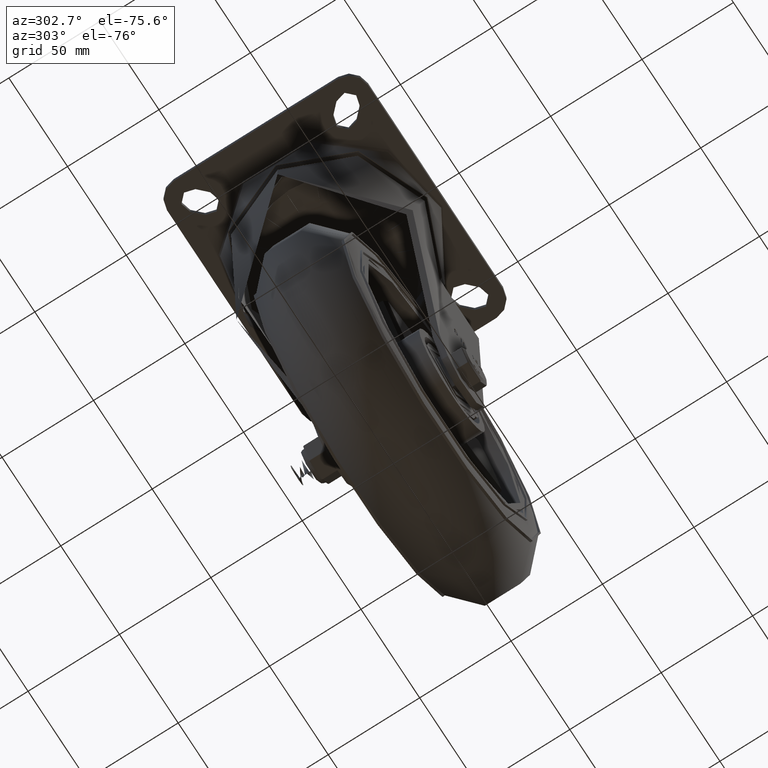
[diagram: clean part render]
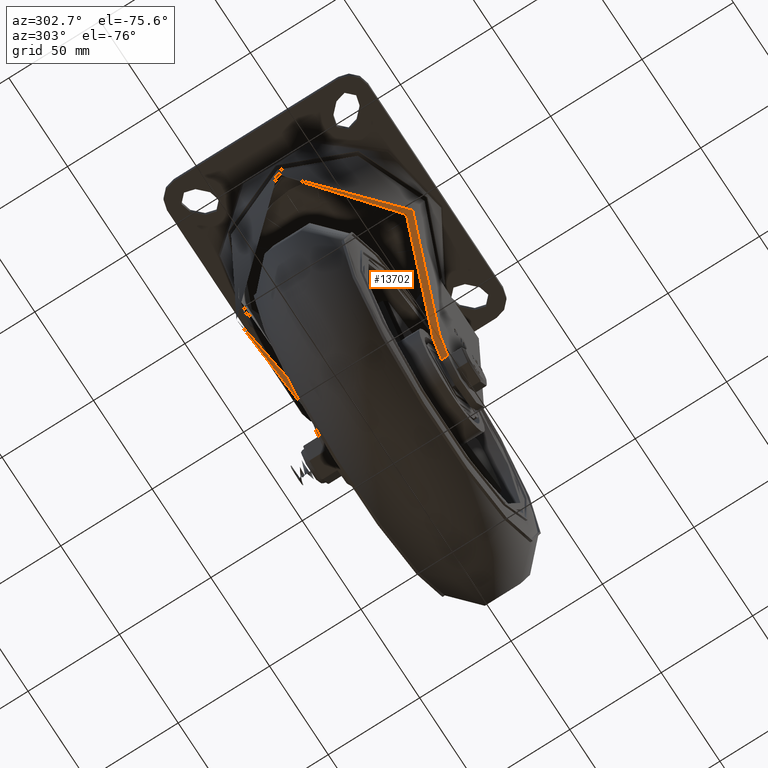
[diagram: same view with one face highlighted and labeled with its STEP entity id]
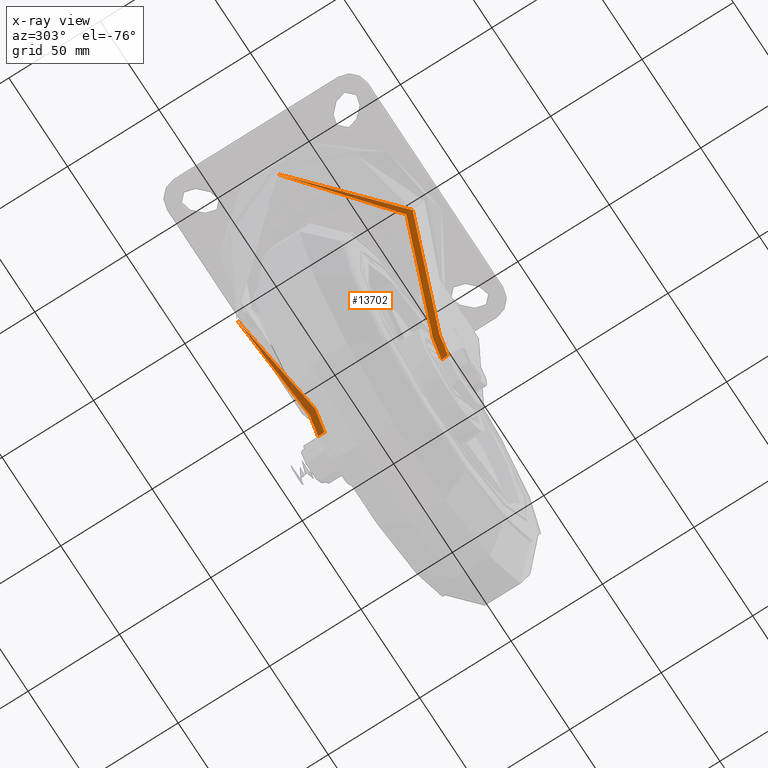
[diagram: x-ray of the same camera — body ghosted, the highlighted face saturated]
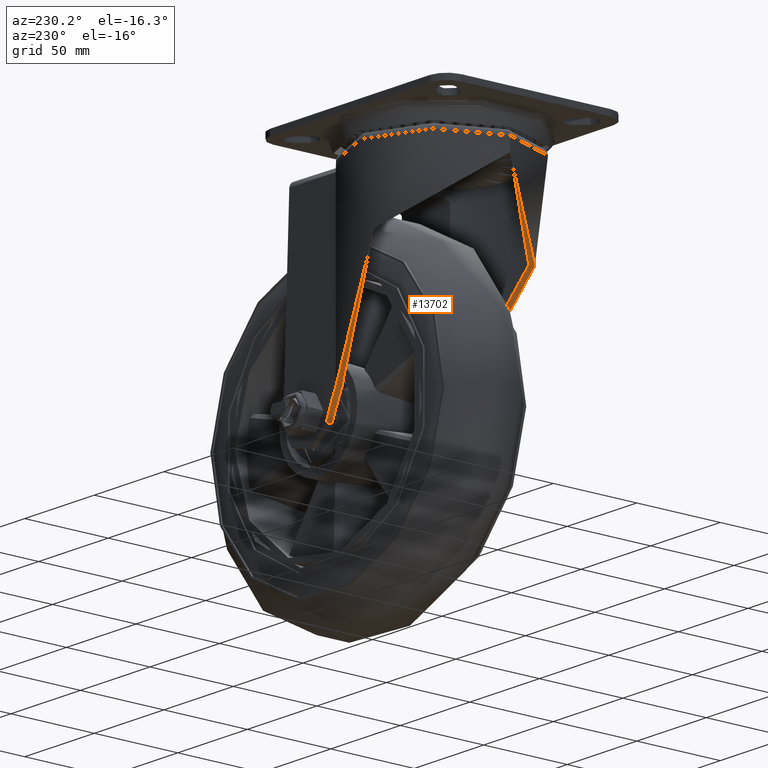
[diagram: same view with one face highlighted and labeled with its STEP entity id]
A machine part, auxiliary view. The second image highlights one B-rep face of the part: STEP entity #13702.
The next image is the same camera in x-ray: the body ghosted, the highlighted face saturated — about 18% of this face is hidden behind the body in this view.
A second angle (auxiliary view) of the same face is appended — the face is thin or edge-on in the first view.
In plain terms, the highlighted cylindrical surface (partial cylindrical patch) has radius 271.645 mm, axis along (0, 1, 0).
Its self-contained STEP definition (entity closure, byte-faithful):
#1283=B_SPLINE_CURVE_WITH_KNOTS('',3,(#22356,#22357,#22358,#22359,#22360,
#22361),.UNSPECIFIED.,.F.,.F.,(4,2,4),(1.34901002270224,1.50553941394744,
1.61636388484606),.UNSPECIFIED.);
#1284=B_SPLINE_CURVE_WITH_KNOTS('',3,(#22367,#22368,#22369,#22370,#22371,
#22372),.UNSPECIFIED.,.F.,.F.,(4,2,4),(1.07844589428688,1.18927036518551,
1.3457997564307),.UNSPECIFIED.);
#1286=B_SPLINE_CURVE_WITH_KNOTS('',3,(#22423,#22424,#22425,#22426,#22427,
#22428,#22429,#22430,#22431,#22432,#22433,#22434,#22435,#22436,#22437,#22438,
#22439,#22440,#22441,#22442,#22443,#22444,#22445,#22446,#22447,#22448),
 .UNSPECIFIED.,.F.,.F.,(4,2,2,2,2,2,2,2,2,2,2,2,4),(18.8724953344088,19.7039471192867,
20.5353989041646,21.3668506890425,22.1983024739204,23.4564290085701,24.7145555432199,
25.9726820778696,27.2308086125194,28.931667431193,30.6325262498666,32.3333850685403,
32.9606954078772),.UNSPECIFIED.);
#1287=B_SPLINE_CURVE_WITH_KNOTS('',3,(#22452,#22453,#22454,#22455,#22456,
#22457,#22458,#22459,#22460,#22461,#22462,#22463,#22464,#22465,#22466,#22467,
#22468,#22469,#22470,#22471,#22472,#22473,#22474,#22475,#22476,#22477),
 .UNSPECIFIED.,.F.,.F.,(4,2,2,2,2,2,2,2,2,2,2,2,4),(4.78429657236688,5.41160560027723,
7.11246441895088,8.81332323762452,10.5141820562982,11.7723085909479,13.0304351255977,
14.2885616602474,15.5466881948971,16.378139979775,17.2095917646529,18.0410435495309,
18.8724953344088),.UNSPECIFIED.);
#1298=B_SPLINE_CURVE_WITH_KNOTS('',3,(#22648,#22649,#22650,#22651,#22652,
#22653,#22654,#22655,#22656,#22657,#22658,#22659,#22660,#22661,#22662,#22663,
#22664,#22665,#22666,#22667,#22668,#22669,#22670,#22671,#22672,#22673),
 .UNSPECIFIED.,.F.,.F.,(4,2,2,2,2,2,2,2,2,2,2,2,4),(-33.7066355953507,-32.8329161288491,
-31.4540616062299,-28.6963525609916,-25.9386435157532,-24.8521072401138,
-23.7655709644743,-22.6790346888349,-21.5924984131954,-20.8155587719849,
-20.0386191307744,-19.2616794895638,-18.4847398483533),.UNSPECIFIED.);
#1299=B_SPLINE_CURVE_WITH_KNOTS('',3,(#22677,#22678,#22679,#22680,#22681,
#22682,#22683,#22684,#22685,#22686,#22687,#22688,#22689,#22690,#22691,#22692,
#22693,#22694,#22695,#22696,#22697,#22698,#22699,#22700,#22701,#22702),
 .UNSPECIFIED.,.F.,.F.,(4,2,2,2,2,2,2,2,2,2,2,2,4),(-18.4847398483533,-17.7078002071428,
-16.9308605659323,-16.1539209247217,-15.3769812835112,-14.2904450078718,
-13.2039087322323,-12.1173724565929,-11.0308361809534,-8.27312713571506,
-5.51541809047671,-4.13656356785753,-3.26284406288861),.UNSPECIFIED.);
#2041=FACE_OUTER_BOUND('',#2885,.T.);
#2885=EDGE_LOOP('',(#9903,#9904,#9905,#9906,#9907,#9908,#9909,#9910,#9911,
#9912,#9913,#9914));
#3863=LINE('',#22704,#4694);
#3864=LINE('',#22707,#4695);
#4694=VECTOR('',#16551,1000.);
#4695=VECTOR('',#16554,1000.);
#5498=CIRCLE('',#14880,271.645385804713);
#5500=CIRCLE('',#14884,271.645385804713);
#5503=CIRCLE('',#14888,271.645385804713);
#5507=CIRCLE('',#14894,271.645385804713);
#6103=VERTEX_POINT('',#22354);
#6104=VERTEX_POINT('',#22355);
#6105=VERTEX_POINT('',#22365);
#6106=VERTEX_POINT('',#22366);
#6109=VERTEX_POINT('',#22422);
#6111=VERTEX_POINT('',#22479);
#6113=VERTEX_POINT('',#22487);
#6116=VERTEX_POINT('',#22495);
#6117=VERTEX_POINT('',#22497);
#6139=VERTEX_POINT('',#22645);
#6140=VERTEX_POINT('',#22647);
#6142=VERTEX_POINT('',#22705);
#7542=EDGE_CURVE('',#6103,#6104,#1283,.T.);
#7545=EDGE_CURVE('',#6105,#6106,#1284,.T.);
#7555=EDGE_CURVE('',#6104,#6109,#1286,.F.);
#7558=EDGE_CURVE('',#6109,#6105,#1287,.F.);
#7560=EDGE_CURVE('',#6111,#6103,#5498,.T.);
#7563=EDGE_CURVE('',#6106,#6113,#5500,.T.);
#7568=EDGE_CURVE('',#6116,#6117,#5503,.F.);
#7592=EDGE_CURVE('',#6139,#6140,#1298,.T.);
#7595=EDGE_CURVE('',#6140,#6116,#1299,.T.);
#7596=EDGE_CURVE('',#6111,#6117,#3863,.T.);
#7597=EDGE_CURVE('',#6142,#6139,#5507,.F.);
#7598=EDGE_CURVE('',#6113,#6142,#3864,.T.);
#9903=ORIENTED_EDGE('',*,*,#7545,.F.);
#9904=ORIENTED_EDGE('',*,*,#7558,.F.);
#9905=ORIENTED_EDGE('',*,*,#7555,.F.);
#9906=ORIENTED_EDGE('',*,*,#7542,.F.);
#9907=ORIENTED_EDGE('',*,*,#7560,.F.);
#9908=ORIENTED_EDGE('',*,*,#7596,.T.);
#9909=ORIENTED_EDGE('',*,*,#7568,.F.);
#9910=ORIENTED_EDGE('',*,*,#7595,.F.);
#9911=ORIENTED_EDGE('',*,*,#7592,.F.);
#9912=ORIENTED_EDGE('',*,*,#7597,.F.);
#9913=ORIENTED_EDGE('',*,*,#7598,.F.);
#9914=ORIENTED_EDGE('',*,*,#7563,.F.);
#13443=CYLINDRICAL_SURFACE('',#14893,271.645385804713);
#13702=ADVANCED_FACE('',(#2041),#13443,.F.);
#14880=AXIS2_PLACEMENT_3D('',#22481,#16508,#16509);
#14884=AXIS2_PLACEMENT_3D('',#22488,#16517,#16518);
#14888=AXIS2_PLACEMENT_3D('',#22498,#16527,#16528);
#14893=AXIS2_PLACEMENT_3D('',#22703,#16549,#16550);
#14894=AXIS2_PLACEMENT_3D('',#22706,#16552,#16553);
#16508=DIRECTION('center_axis',(0.,-1.,0.));
#16509=DIRECTION('ref_axis',(0.609450474881755,0.,0.792824141071904));
#16517=DIRECTION('center_axis',(0.,1.,0.));
#16518=DIRECTION('ref_axis',(0.609450474881755,0.,0.792824141071904));
#16527=DIRECTION('center_axis',(6.62100070035837E-16,-1.,0.));
#16528=DIRECTION('ref_axis',(0.609450474881755,0.,0.792824141071904));
#16549=DIRECTION('center_axis',(0.,1.,0.));
#16550=DIRECTION('ref_axis',(0.609450474881755,0.,0.792824141071904));
#16551=DIRECTION('',(0.,-1.,0.));
#16552=DIRECTION('center_axis',(0.,1.,0.));
#16553=DIRECTION('ref_axis',(0.609450474881755,0.,0.792824141071904));
#16554=DIRECTION('',(0.,1.,0.));
#22354=CARTESIAN_POINT('',(33.0681115275729,-32.,-123.722525823124));
#22355=CARTESIAN_POINT('',(31.8433666561813,-32.5,-121.245121868101));
#22356=CARTESIAN_POINT('Ctrl Pts',(33.0681115275729,-32.,-123.722525823124));
#22357=CARTESIAN_POINT('Ctrl Pts',(32.8392639678781,-32.,-123.25362590699));
#22358=CARTESIAN_POINT('Ctrl Pts',(32.5876395220616,-32.045854220454,-122.741784953481));
#22359=CARTESIAN_POINT('Ctrl Pts',(32.1692176135496,-32.2364559375911,-121.897455399293));
#22360=CARTESIAN_POINT('Ctrl Pts',(31.9992174166285,-32.3472980643519,-121.556379986811));
#22361=CARTESIAN_POINT('Ctrl Pts',(31.8433666561813,-32.5,-121.245121868101));
#22365=CARTESIAN_POINT('',(31.8433666561813,32.5,-121.245121868101));
#22366=CARTESIAN_POINT('',(33.0681115275729,32.,-123.722525823124));
#22367=CARTESIAN_POINT('Ctrl Pts',(31.8433666561813,32.5,-121.245121868101));
#22368=CARTESIAN_POINT('Ctrl Pts',(31.9992174166285,32.3472980643519,-121.556379986811));
#22369=CARTESIAN_POINT('Ctrl Pts',(32.1692176135496,32.2364559375911,-121.897455399293));
#22370=CARTESIAN_POINT('Ctrl Pts',(32.5876395220616,32.045854220454,-122.741784953481));
#22371=CARTESIAN_POINT('Ctrl Pts',(32.8392639678781,32.,-123.25362590699));
#22372=CARTESIAN_POINT('Ctrl Pts',(33.0681115275729,32.,-123.722525823124));
#22422=CARTESIAN_POINT('',(-45.5,-2.78607146806023E-15,-27.5000000000003));
#22423=CARTESIAN_POINT('Ctrl Pts',(-45.5,0.,-27.5000000000003));
#22424=CARTESIAN_POINT('Ctrl Pts',(-45.5,-2.77150594959301,-27.5000000000003));
#22425=CARTESIAN_POINT('Ctrl Pts',(-45.2421526879575,-5.61305598141599,
-27.697424844719));
#22426=CARTESIAN_POINT('Ctrl Pts',(-44.1892868987557,-11.2100713571042,
-28.5128969973618));
#22427=CARTESIAN_POINT('Ctrl Pts',(-43.394574605459,-13.9655900308857,-29.1309735616986));
#22428=CARTESIAN_POINT('Ctrl Pts',(-41.3492922121052,-19.1927729686648,
-30.7512703049621));
#22429=CARTESIAN_POINT('Ctrl Pts',(-40.0968879196536,-21.6702353467618,
-31.755590723998));
#22430=CARTESIAN_POINT('Ctrl Pts',(-37.2913096357419,-26.20529994139,-34.0587469782944));
#22431=CARTESIAN_POINT('Ctrl Pts',(-35.7387399245103,-28.2631213061893,
-35.3578873423744));
#22432=CARTESIAN_POINT('Ctrl Pts',(-31.7344800749827,-32.8097450804741,
-38.7943065568269));
#22433=CARTESIAN_POINT('Ctrl Pts',(-29.0461413575341,-35.1941560440706,
-41.1761409802568));
#22434=CARTESIAN_POINT('Ctrl Pts',(-23.3692276127139,-39.1942106251389,
-46.447843612918));
#22435=CARTESIAN_POINT('Ctrl Pts',(-20.3812259581104,-40.809820266694,-49.3383550123301));
#22436=CARTESIAN_POINT('Ctrl Pts',(-14.3671908185176,-43.2945644675167,
-55.4537182962935));
#22437=CARTESIAN_POINT('Ctrl Pts',(-11.3386895831853,-44.1654063236404,
-58.6817109086105));
#22438=CARTESIAN_POINT('Ctrl Pts',(-5.47517770528714,-45.2677746932821,
-65.2500829699903));
#22439=CARTESIAN_POINT('Ctrl Pts',(-2.64023915673754,-45.5,-68.5904094793787));
#22440=CARTESIAN_POINT('Ctrl Pts',(3.56933418815039,-45.5,-76.2536712014477));
#22441=CARTESIAN_POINT('Ctrl Pts',(7.13574053609315,-45.0759917785171,-80.9420966059479));
#22442=CARTESIAN_POINT('Ctrl Pts',(14.0169284044724,-43.4314350098086,-90.6516619162689));
#22443=CARTESIAN_POINT('Ctrl Pts',(17.3318281143804,-42.2126408687008,-95.6730151325808));
#22444=CARTESIAN_POINT('Ctrl Pts',(23.5348977395243,-39.0948662754184,-105.775063243436));
#22445=CARTESIAN_POINT('Ctrl Pts',(26.4241864461313,-37.1972871777051,-110.857108435972));
#22446=CARTESIAN_POINT('Ctrl Pts',(30.0164503270487,-34.2175999512058,-117.645859311399));
#22447=CARTESIAN_POINT('Ctrl Pts',(30.9486148996263,-33.3766741000075,-119.45816396261));
#22448=CARTESIAN_POINT('Ctrl Pts',(31.8433666561813,-32.5,-121.245121868101));
#22452=CARTESIAN_POINT('Ctrl Pts',(31.8433666561813,32.5,-121.245121868101));
#22453=CARTESIAN_POINT('Ctrl Pts',(30.9486143963904,33.376674593076,-119.45816295757));
#22454=CARTESIAN_POINT('Ctrl Pts',(30.0164483035745,34.2176016296237,-117.645855487386));
#22455=CARTESIAN_POINT('Ctrl Pts',(26.4241864461314,37.1972871777051,-110.857108435972));
#22456=CARTESIAN_POINT('Ctrl Pts',(23.5348977395244,39.0948662754184,-105.775063243436));
#22457=CARTESIAN_POINT('Ctrl Pts',(17.3318281143804,42.2126408687007,-95.6730151325809));
#22458=CARTESIAN_POINT('Ctrl Pts',(14.0169284044725,43.4314350098086,-90.6516619162689));
#22459=CARTESIAN_POINT('Ctrl Pts',(7.13574053609318,45.0759917785171,-80.9420966059479));
#22460=CARTESIAN_POINT('Ctrl Pts',(3.56933418815039,45.5,-76.2536712014477));
#22461=CARTESIAN_POINT('Ctrl Pts',(-2.64023915673754,45.5,-68.5904094793787));
#22462=CARTESIAN_POINT('Ctrl Pts',(-5.47517770528714,45.2677746932821,-65.2500829699903));
#22463=CARTESIAN_POINT('Ctrl Pts',(-11.3386895831853,44.1654063236404,-58.6817109086105));
#22464=CARTESIAN_POINT('Ctrl Pts',(-14.3671908185176,43.2945644675167,-55.4537182962935));
#22465=CARTESIAN_POINT('Ctrl Pts',(-20.3812259581104,40.809820266694,-49.3383550123301));
#22466=CARTESIAN_POINT('Ctrl Pts',(-23.3692276127139,39.1942106251389,-46.447843612918));
#22467=CARTESIAN_POINT('Ctrl Pts',(-29.0461413575341,35.1941560440706,-41.1761409802568));
#22468=CARTESIAN_POINT('Ctrl Pts',(-31.7344800749827,32.8097450804742,-38.7943065568269));
#22469=CARTESIAN_POINT('Ctrl Pts',(-35.7387399245103,28.2631213061893,-35.3578873423744));
#22470=CARTESIAN_POINT('Ctrl Pts',(-37.2913096357419,26.20529994139,-34.0587469782944));
#22471=CARTESIAN_POINT('Ctrl Pts',(-40.0968879196537,21.6702353467618,-31.755590723998));
#22472=CARTESIAN_POINT('Ctrl Pts',(-41.3492922121053,19.1927729686648,-30.7512703049621));
#22473=CARTESIAN_POINT('Ctrl Pts',(-43.394574605459,13.9655900308858,-29.1309735616986));
#22474=CARTESIAN_POINT('Ctrl Pts',(-44.1892868987557,11.2100713571042,-28.5128969973618));
#22475=CARTESIAN_POINT('Ctrl Pts',(-45.2421526879575,5.613055981416,-27.6974248447189));
#22476=CARTESIAN_POINT('Ctrl Pts',(-45.5,2.77150594959301,-27.5000000000003));
#22477=CARTESIAN_POINT('Ctrl Pts',(-45.5,-5.55111512312578E-16,-27.5000000000003));
#22479=CARTESIAN_POINT('',(40.7676030258087,-32.,-141.));
#22481=CARTESIAN_POINT('Origin',(-211.05440937812,-32.,-242.867019676768));
#22487=CARTESIAN_POINT('',(40.7676030258087,32.,-141.));
#22488=CARTESIAN_POINT('Origin',(-211.05440937812,32.,-242.867019676768));
#22495=CARTESIAN_POINT('',(33.7749907476629,-35.4999999999765,-125.181929444194));
#22497=CARTESIAN_POINT('',(40.7676030258087,-35.5,-141.));
#22498=CARTESIAN_POINT('Origin',(-211.05440937812,-35.5,-242.867019676768));
#22645=CARTESIAN_POINT('',(33.7749907476629,35.4999999999765,-125.181929444194));
#22647=CARTESIAN_POINT('',(-49.,2.44527314559844E-15,-24.8542126444744));
#22648=CARTESIAN_POINT('Ctrl Pts',(33.7749907476443,35.4999999999513,-125.181929444191));
#22649=CARTESIAN_POINT('Ctrl Pts',(32.5614588819657,36.6545641558758,-122.65732519636));
#22650=CARTESIAN_POINT('Ctrl Pts',(31.2913626821612,37.7446245533889,-120.115244151421));
#22651=CARTESIAN_POINT('Ctrl Pts',(27.8743648009841,40.3857448058822,-113.542550339515));
#22652=CARTESIAN_POINT('Ctrl Pts',(25.6449244029292,41.8393427594367,-109.501321665697));
#22653=CARTESIAN_POINT('Ctrl Pts',(18.5656438270791,45.6627623971354,-97.4265839204206));
#22654=CARTESIAN_POINT('Ctrl Pts',(13.3317748664681,47.4917773394887,-89.4674087568329));
#22655=CARTESIAN_POINT('Ctrl Pts',(2.12390271783417,49.2817832564204,-74.2384112459558));
#22656=CARTESIAN_POINT('Ctrl Pts',(-3.84952518835543,49.2469785195663,-66.9686599814269));
#22657=CARTESIAN_POINT('Ctrl Pts',(-12.3820711358701,47.4736927708945,-57.574322062156));
#22658=CARTESIAN_POINT('Ctrl Pts',(-14.9367947253023,46.7509589346629,-54.8701192271866));
#22659=CARTESIAN_POINT('Ctrl Pts',(-20.1390662618645,44.7568766643116,-49.5892788026858));
#22660=CARTESIAN_POINT('Ctrl Pts',(-22.786366956235,43.4847725187942,-47.0126830309684));
#22661=CARTESIAN_POINT('Ctrl Pts',(-27.960223956764,40.3530680468516,-42.1675034257967));
#22662=CARTESIAN_POINT('Ctrl Pts',(-30.4890189319026,38.4911258079877,-39.8961817390759));
#22663=CARTESIAN_POINT('Ctrl Pts',(-35.2158797746582,34.2197144151907,-35.7877286190074));
#22664=CARTESIAN_POINT('Ctrl Pts',(-37.4132153431886,31.8097880378511,-33.9502323734116));
#22665=CARTESIAN_POINT('Ctrl Pts',(-40.7417620396458,27.3227837345144,-31.2352047961001));
#22666=CARTESIAN_POINT('Ctrl Pts',(-42.0800960488173,25.2351252598038,-30.1671753916662));
#22667=CARTESIAN_POINT('Ctrl Pts',(-44.4793922011234,20.7154459434836,-28.2829895730277));
#22668=CARTESIAN_POINT('Ctrl Pts',(-45.5398937018669,18.2832674332834,-27.4666248269634));
#22669=CARTESIAN_POINT('Ctrl Pts',(-47.2599900726682,13.2156463802747,-26.155753196786));
#22670=CARTESIAN_POINT('Ctrl Pts',(-47.920762928375,10.5757503769438,-25.6599199513114));
#22671=CARTESIAN_POINT('Ctrl Pts',(-48.7908649342869,5.26284287353149,-25.0091464676826));
#22672=CARTESIAN_POINT('Ctrl Pts',(-49.,2.58979880403507,-24.8542126444744));
#22673=CARTESIAN_POINT('Ctrl Pts',(-49.,-1.11022302462516E-15,-24.8542126444744));
#22677=CARTESIAN_POINT('Ctrl Pts',(-49.,5.55111512312578E-16,-24.8542126444744));
#22678=CARTESIAN_POINT('Ctrl Pts',(-49.,-2.58979880403507,-24.8542126444744));
#22679=CARTESIAN_POINT('Ctrl Pts',(-48.7908649342869,-5.26284287353149,
-25.0091464676826));
#22680=CARTESIAN_POINT('Ctrl Pts',(-47.920762928375,-10.5757503769438,-25.6599199513114));
#22681=CARTESIAN_POINT('Ctrl Pts',(-47.2599900726682,-13.2156463802747,
-26.155753196786));
#22682=CARTESIAN_POINT('Ctrl Pts',(-45.5398937018669,-18.2832674332834,
-27.4666248269634));
#22683=CARTESIAN_POINT('Ctrl Pts',(-44.4793922011234,-20.7154459434836,
-28.2829895730277));
#22684=CARTESIAN_POINT('Ctrl Pts',(-42.0800960488172,-25.2351252598039,
-30.1671753916662));
#22685=CARTESIAN_POINT('Ctrl Pts',(-40.7417620396458,-27.3227837345144,
-31.2352047961002));
#22686=CARTESIAN_POINT('Ctrl Pts',(-37.4132153431886,-31.8097880378512,
-33.9502323734116));
#22687=CARTESIAN_POINT('Ctrl Pts',(-35.2158797746581,-34.2197144151908,
-35.7877286190074));
#22688=CARTESIAN_POINT('Ctrl Pts',(-30.4890189319026,-38.4911258079878,
-39.8961817390759));
#22689=CARTESIAN_POINT('Ctrl Pts',(-27.960223956764,-40.3530680468516,-42.1675034257967));
#22690=CARTESIAN_POINT('Ctrl Pts',(-22.786366956235,-43.4847725187942,-47.0126830309684));
#22691=CARTESIAN_POINT('Ctrl Pts',(-20.1390662618645,-44.7568766643116,
-49.5892788026858));
#22692=CARTESIAN_POINT('Ctrl Pts',(-14.9367947253023,-46.7509589346629,
-54.8701192271866));
#22693=CARTESIAN_POINT('Ctrl Pts',(-12.3820711358701,-47.4736927708945,
-57.574322062156));
#22694=CARTESIAN_POINT('Ctrl Pts',(-3.84952518835539,-49.2469785195663,
-66.968659981427));
#22695=CARTESIAN_POINT('Ctrl Pts',(2.12390271783423,-49.2817832564204,-74.2384112459558));
#22696=CARTESIAN_POINT('Ctrl Pts',(13.3317748664682,-47.4917773394887,-89.467408756833));
#22697=CARTESIAN_POINT('Ctrl Pts',(18.5656438270791,-45.6627623971354,-97.4265839204206));
#22698=CARTESIAN_POINT('Ctrl Pts',(25.6449244029292,-41.8393427594367,-109.501321665697));
#22699=CARTESIAN_POINT('Ctrl Pts',(27.8743648009841,-40.3857448058822,-113.542550339515));
#22700=CARTESIAN_POINT('Ctrl Pts',(31.2913627405134,-37.7446245082863,-120.115244263663));
#22701=CARTESIAN_POINT('Ctrl Pts',(32.5614588415298,-36.6545641943469,-122.657325112238));
#22702=CARTESIAN_POINT('Ctrl Pts',(33.7749907476443,-35.4999999999513,-125.181929444191));
#22703=CARTESIAN_POINT('Origin',(-211.05440937812,0.,-242.867019676768));
#22704=CARTESIAN_POINT('',(40.7676030258087,0.,-141.));
#22705=CARTESIAN_POINT('',(40.7676030258087,35.5,-141.));
#22706=CARTESIAN_POINT('Origin',(-211.05440937812,35.5,-242.867019676768));
#22707=CARTESIAN_POINT('',(40.7676030258087,0.,-141.));